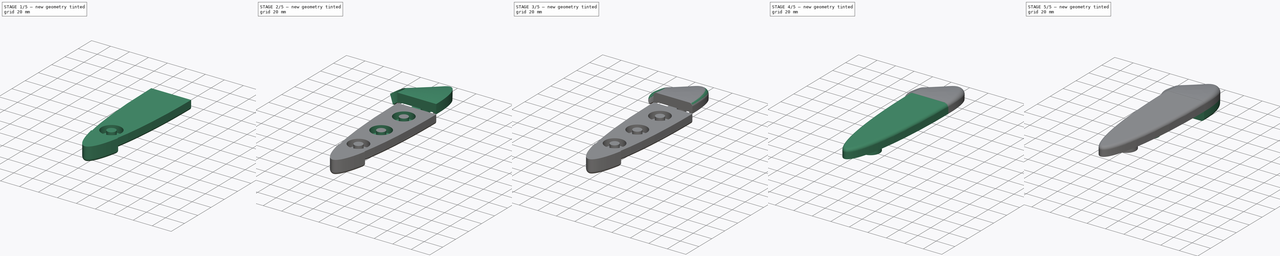
[diagram: build sequence overview — one tinted view per stage of 5, left to right]
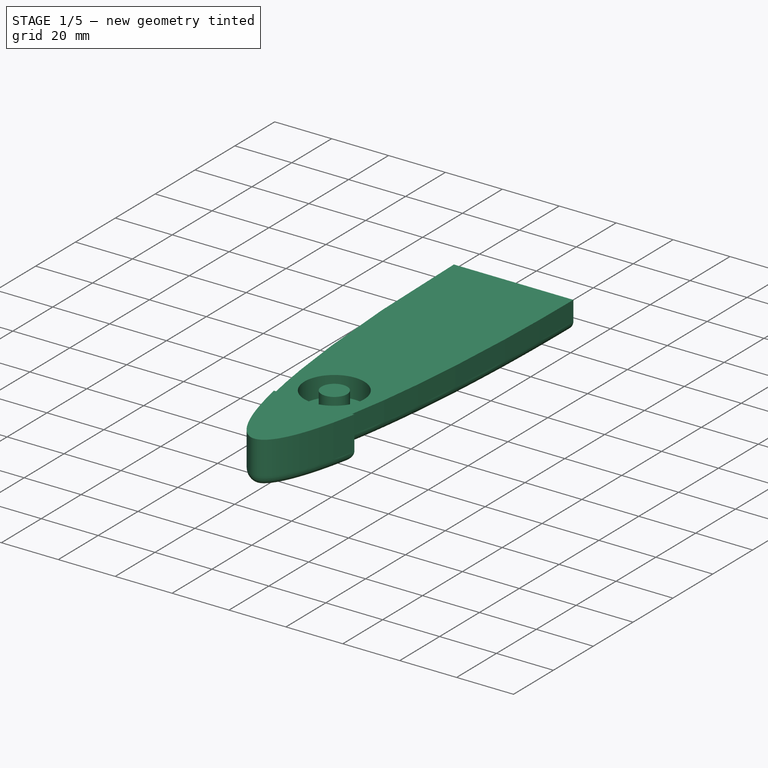
[diagram: stage 1 of 5 — iso view after this stage's code; geometry added in this stage tinted green]
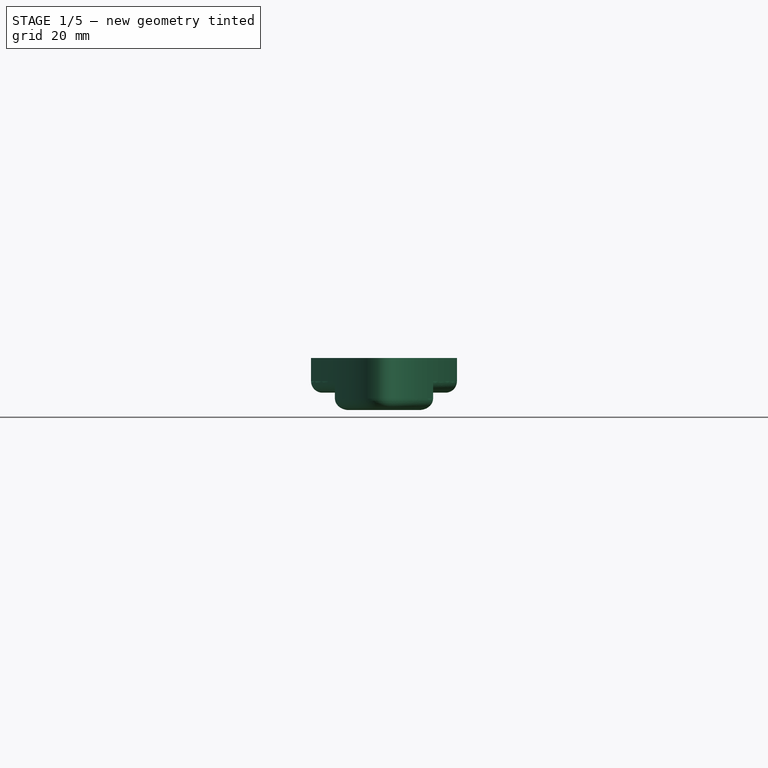
[diagram: stage 1 of 5 — front view after this stage's code; geometry added in this stage tinted green]
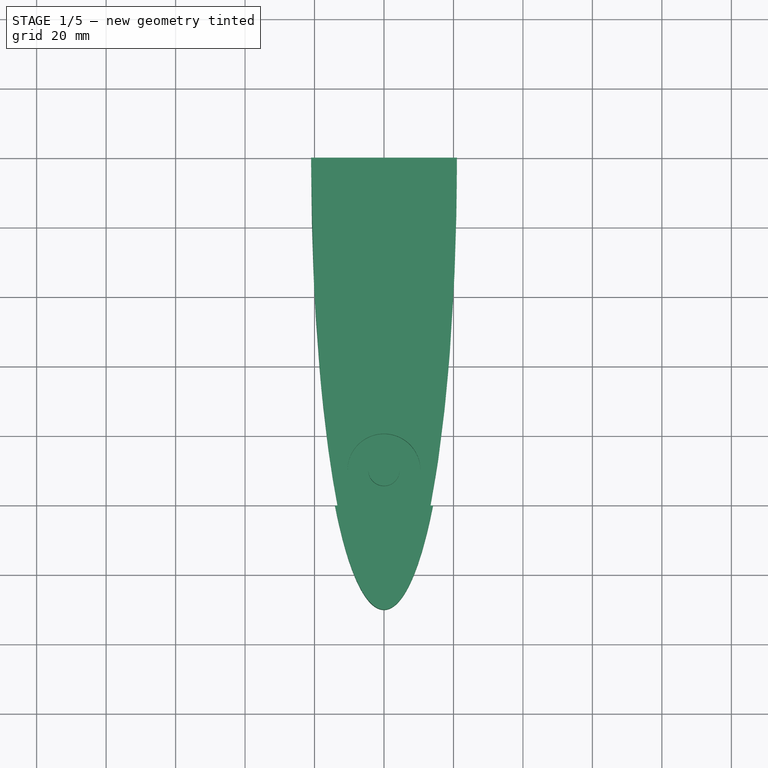
[diagram: stage 1 of 5 — top view after this stage's code; geometry added in this stage tinted green]
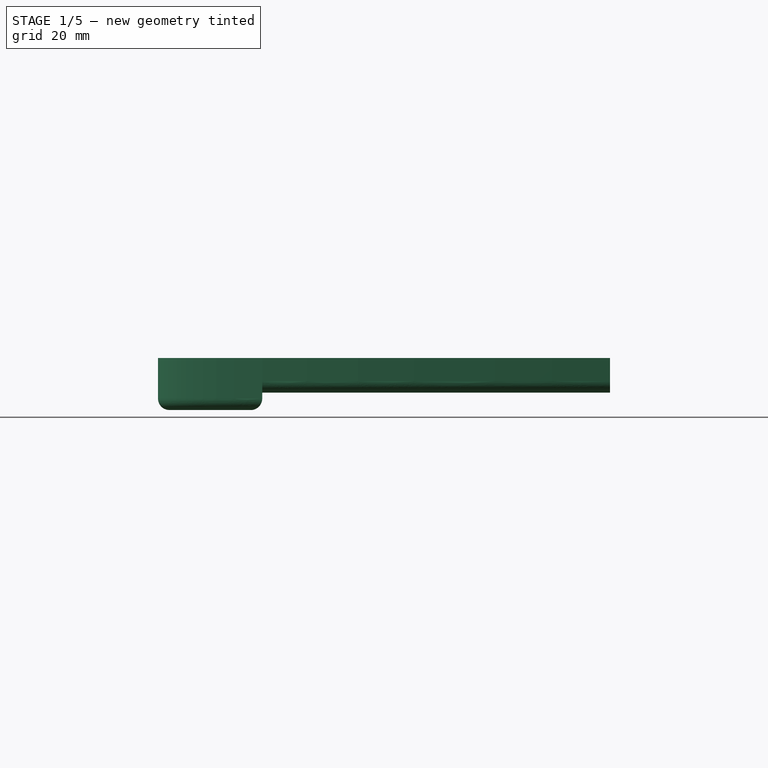
[diagram: stage 1 of 5 — right view after this stage's code; geometry added in this stage tinted green]
FCSTD DOCUMENT  (FreeCAD 0.18R14555 (Git shallow))
Label: Poingee frigo
License: All rights reserved
LicenseURL: http://en.wikipedia.org/wiki/All_rights_reserved
objects: Sketcher::SketchObject×11, PartDesign::Pad×7, Part::Sweep×2, PartDesign::Fillet×2, Part::Fillet×2, PartDesign::Pocket×2, PartDesign::LinearPattern×2, PartDesign::Body×2, Part::Cut×2, Part::Helix×1
note: 42 computed .brp shape members not serialized (recipe doc carries the construction recipe); baked Part::Feature solids carry a one-line shape summary decoded from their .brp

FEATURE [Sketcher::SketchObject] Sketch001  label="botHand_Sketch"
  MapMode = 5
  Support = -> [XY_Plane001]
  sketch-geometry (6):
    g0: ArcOfEllipse CenterX=0 CenterY=0 CenterZ=0 NormalX=0 NormalY=0 NormalZ=1 MajorRadius=130 MinorRadius=21 AngleXU=-1.5708 StartAngle=4.71239 EndAngle=7.85398
    g1: LineSegment [constr] StartX=0 StartY=-130 StartZ=0 EndX=0 EndY=130 EndZ=0
    g2: LineSegment [constr] StartX=21 StartY=0 StartZ=0 EndX=-21 EndY=0 EndZ=0
    g3: GeomPoint X=0 Y=-128.293 Z=0
    g4: GeomPoint X=0 Y=128.293 Z=0
    g5: LineSegment StartX=-21 StartY=0 StartZ=0 EndX=21 EndY=0 EndZ=0
  constraints (8):
    c: InternalAlignment(g1-g4 -> g0) x4
    c: DistanceY(g1,g0) = 130
    c: Coincident(g0,g-1)
    c: DistanceX(g2,g2) = 42
    c: PointOnObject(g0,g-1)
    c: PointOnObject(g0,g-1)
    c: PointOnObject(g1,g-2)
    c: Horizontal(g5)
FEATURE [PartDesign::Pad] Pad001  label="botHand_Pad"
  Length = 10
  Length2 = 100
  Profile = -> Sketch001
  Reversed = true
  Type = 0
FEATURE [Sketcher::SketchObject] Sketch004  label="stopHand_Sketch"
  AttachmentOffset = pos=(0,0,-10) rot=(0,0,1;0rad)
  MapMode = 5
  Placement = pos=(0,0,0) rot=(1,0,0;3.14159rad)
  Support = -> [Pad001]
  sketch-geometry (6):
    g0: ArcOfEllipse CenterX=0 CenterY=27.6697 CenterZ=0 NormalX=0 NormalY=0 NormalZ=1 MajorRadius=102.46 MinorRadius=19.9816 AngleXU=-1.5708 StartAngle=2.35633 EndAngle=3.92685
    g1: LineSegment [constr] StartX=0 StartY=-74.7904 StartZ=0 EndX=0 EndY=130.13 EndZ=0
    g2: LineSegment [constr] StartX=19.9816 StartY=27.6697 StartZ=0 EndX=-19.9816 EndY=27.6697 EndZ=0
    g3: GeomPoint X=0 Y=-72.8231 Z=0
    g4: GeomPoint X=0 Y=128.163 Z=0
    g5: LineSegment StartX=-14.1272 StartY=100.13 StartZ=0 EndX=14.1272 EndY=100.13 EndZ=0
  constraints (7):
    c: InternalAlignment(g1-g4 -> g0) x4
    c: PointOnObject(g0,g-2)
    c: Coincident(g5,g0)
    c: Coincident(g5,g0)
    c: Horizontal(g5)
    c: DistanceY(g0,g1) = 30
    c: PointOnObject(g1,g-2)
FEATURE [PartDesign::Pad] Pad002  label="stopHand_Pad"
  BaseFeature = -> Pad001
  Length = 15
  Length2 = 100
  Profile = -> Sketch004
  Type = 0
FEATURE [PartDesign::Fillet] Fillet
  Base = -> Pad002 [Edge20,Edge13,Edge16,Edge3]
  BaseFeature = -> Pad002
  Radius = 3.3
FEATURE [PartDesign::Body] Body  label="Top_Body"
  Group = -> [Sketch,Pad,Sketch002,Fillet001,Sketch005,Pad003,Sketch006,Pocket,LinearPattern]
  Origin = -> Origin
  Tip = -> LinearPattern
FEATURE [Sketcher::SketchObject] Sketch007
  MapMode = 5
  Support = -> [XY_Plane001]
  sketch-geometry (2):
    g0: Circle CenterX=0 CenterY=-90 CenterZ=0 NormalX=0 NormalY=0 NormalZ=1 AngleXU=0 Radius=10.5
    g1: Circle CenterX=0 CenterY=-90 CenterZ=0 NormalX=0 NormalY=0 NormalZ=1 AngleXU=0 Radius=4.5
  constraints (4):
    c: PointOnObject(g0,g-2)
    c: Radius(g0) = 10.5
    c: DistanceY(g0,g-1) = 90
    c: Radius(g1) = 4.5
FEATURE [PartDesign::Pocket] Pocket001
  BaseFeature = -> Fillet
  Length = 7
  Length2 = 100
  Profile = -> Sketch007
  Type = 0
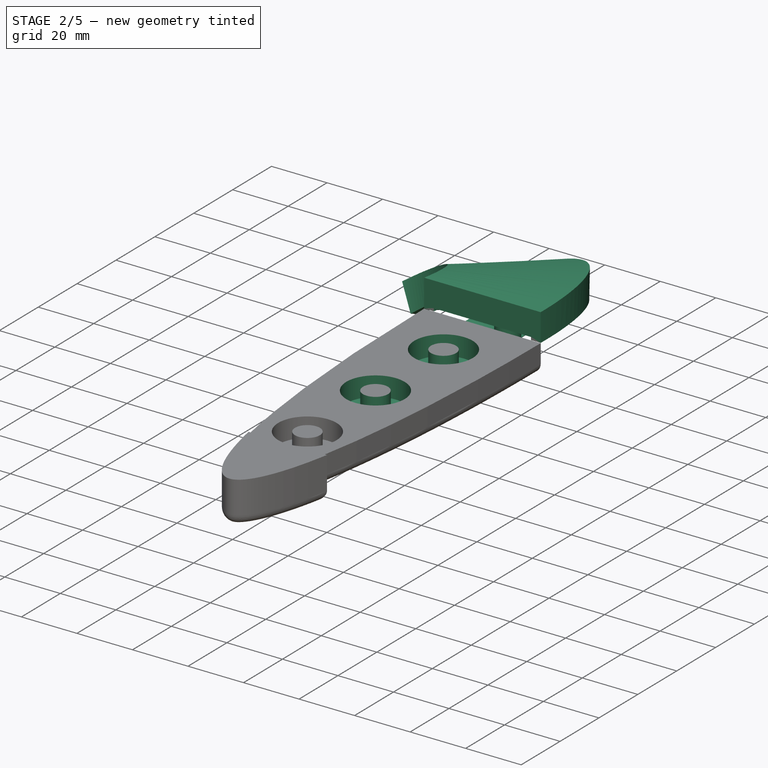
[diagram: stage 2 of 5 — iso view after this stage's code; geometry added in this stage tinted green]
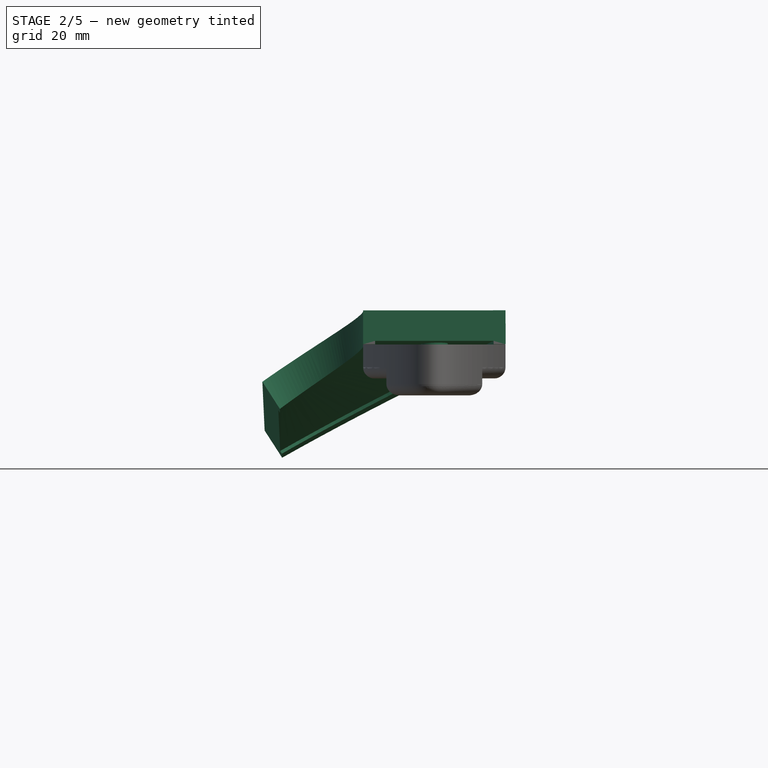
[diagram: stage 2 of 5 — front view after this stage's code; geometry added in this stage tinted green]
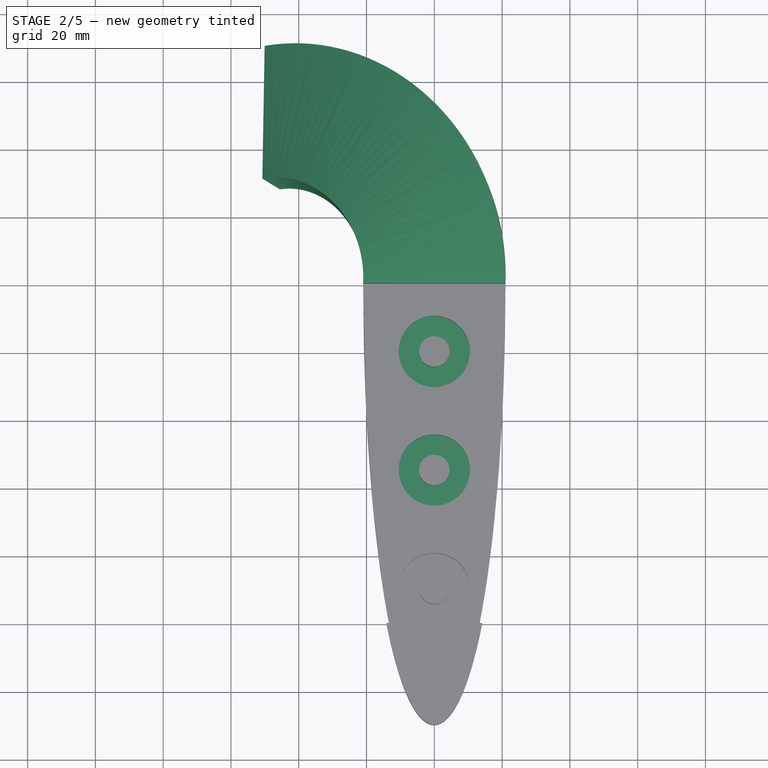
[diagram: stage 2 of 5 — top view after this stage's code; geometry added in this stage tinted green]
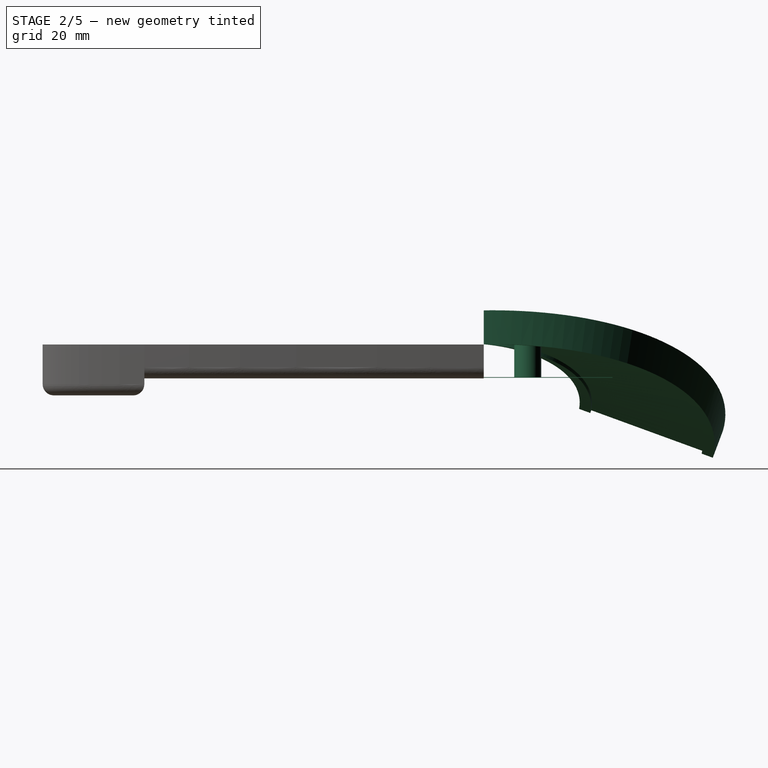
[diagram: stage 2 of 5 — right view after this stage's code; geometry added in this stage tinted green]
FEATURE [Sketcher::SketchObject] Sketch002  label="topSocket_Sketch"
  MapMode = 5
  Placement = pos=(0,0,0) rot=(1,0,0;1.5708rad)
  Support = -> [XZ_Plane]
  sketch-geometry (8):
    g0: LineSegment StartX=-21 StartY=10.0851 StartZ=0 EndX=21 EndY=10.0851 EndZ=0
    g1: LineSegment StartX=21 StartY=10.0851 StartZ=0 EndX=21 EndY=0.085103 EndZ=0
    g2: LineSegment StartX=-21 StartY=0.085103 StartZ=0 EndX=-21 EndY=10.0851 EndZ=0
    g3: LineSegment StartX=-21 StartY=0.085103 StartZ=0 EndX=-17.5 EndY=0.085103 EndZ=0
    g4: LineSegment StartX=21 StartY=0.085103 StartZ=0 EndX=17.5 EndY=0.085103 EndZ=0
    g5: LineSegment StartX=-17.5 StartY=0.085103 StartZ=0 EndX=-17.5 EndY=1.0851 EndZ=0
    g6: LineSegment StartX=17.5 StartY=0.085103 StartZ=0 EndX=17.5 EndY=1.0851 EndZ=0
    g7: LineSegment StartX=17.5 StartY=1.0851 StartZ=0 EndX=-17.5 EndY=1.0851 EndZ=0
  constraints (21):
    c: Coincident(g0,g1)
    c: Coincident(g2,g0)
    c: Horizontal(g0)
    c: Vertical(g1)
    c: Vertical(g2)
    c: Symmetric(g2,g1,g-2)
    c: DistanceX(g0,g0) = 42
    c: DistanceY(g2,g0) = 10
    c: Coincident(g3,g2)
    c: Coincident(g4,g1)
    c: Horizontal(g4)
    c: Coincident(g5,g3)
    c: Vertical(g5)
    c: Vertical(g6)
    c: Coincident(g7,g6)
    c: Coincident(g7,g5)
    c: DistanceY(g4,g6) = 1
    c: DistanceX(g5,g6) = 35
    c: Symmetric(g6,g5,g-2)
    c: Horizontal(g3)
    c: Coincident(g4,g6)
FEATURE [Part::Helix] Helix  label="Hélice"
  Angle = 0
  AttacherType = Attacher::AttachEngine3D
  Height = 10
  LocalCoord = 1
  Pitch = 36
  Placement = pos=(-50,0,0) rot=(-0.185924,-0.130693,0.973834;2.36771rad)
  Radius = 51
  Style = 1
FEATURE [Part::Sweep] Sweep  label="top_Sweep"
  Frenet = true
  Sections = -> [Sketch002]
  Solid = true
  Spine = -> Helix [Edge1]
  Transition = 2
FEATURE [PartDesign::LinearPattern] LinearPattern001
  BaseFeature = -> Pocket001
  Direction = -> Y_Axis001
  Length = 70
  Occurrences = 3
  Originals = -> [Pocket001]
FEATURE [Sketcher::SketchObject] Sketch008
  MapMode = 5
  Placement = pos=(0,0,0) rot=(0,0.707107,0.707107;3.14159rad)
  Support = -> [LinearPattern001]
  sketch-geometry (4):
    g0: LineSegment StartX=-2.13004 StartY=-9.60164 StartZ=0 EndX=17.87 EndY=-9.60164 EndZ=0
    g1: LineSegment StartX=17.87 StartY=-9.60164 StartZ=0 EndX=17.87 EndY=-9.80578 EndZ=0
    g2: LineSegment StartX=17.87 StartY=-9.80578 StartZ=0 EndX=-2.13004 EndY=-9.80578 EndZ=0
    g3: LineSegment StartX=-2.13004 StartY=-9.80578 StartZ=0 EndX=-2.13004 EndY=-9.60164 EndZ=0
  constraints (9):
    c: Coincident(g0,g1)
    c: Coincident(g1,g2)
    c: Coincident(g2,g3)
    c: Coincident(g3,g0)
    c: Horizontal(g0)
    c: Horizontal(g2)
    c: Vertical(g1)
    c: Vertical(g3)
    c: DistanceX(g2,g1) = 20
FEATURE [PartDesign::Pad] Pad004
  BaseFeature = -> LinearPattern001
  Length = 38
  Length2 = 100
  Profile = -> Sketch008
  Type = 0
FEATURE [Sketcher::SketchObject] Sketch009  label="botSocketPin1_Sketch"
  MapMode = 5
  Placement = pos=(0,-2.1e-15,-9.60164) rot=(0,0,1;0rad)
  Support = -> [Pad004]
  sketch-geometry (1):
    g0: Circle CenterX=0 CenterY=13 CenterZ=0 NormalX=0 NormalY=0 NormalZ=1 AngleXU=0 Radius=4
  constraints (3):
    c: Radius(g0) = 4
    c: DistanceY(g-1,g0) = 13
    c: DistanceX(g0,g-1) = 0
FEATURE [PartDesign::Pad] Pad005  label="botSocketPin1_Pad"
  BaseFeature = -> Pad004
  Length = 14
  Length2 = 100
  Profile = -> Sketch009
  Type = 0
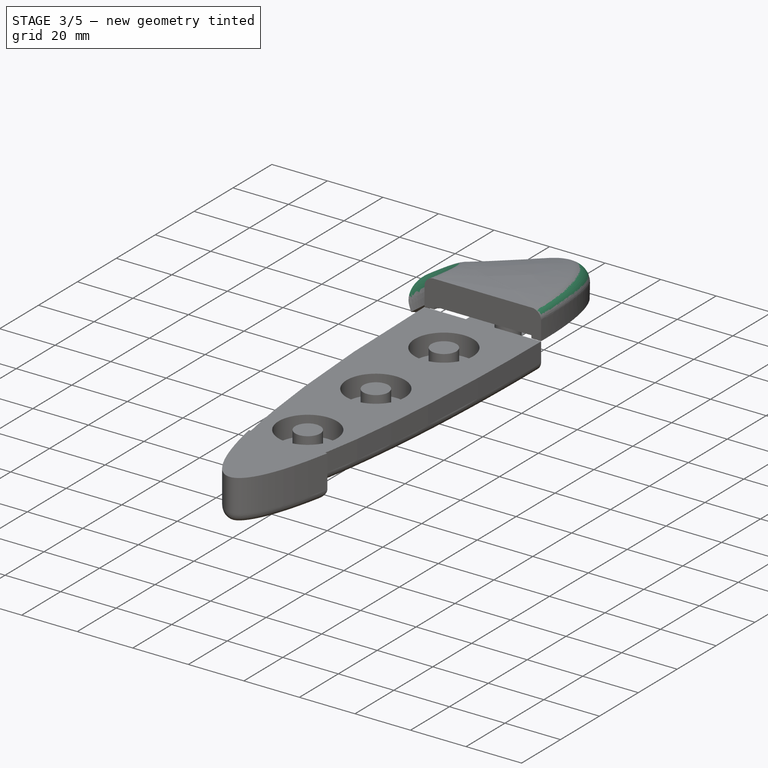
[diagram: stage 3 of 5 — iso view after this stage's code; geometry added in this stage tinted green]
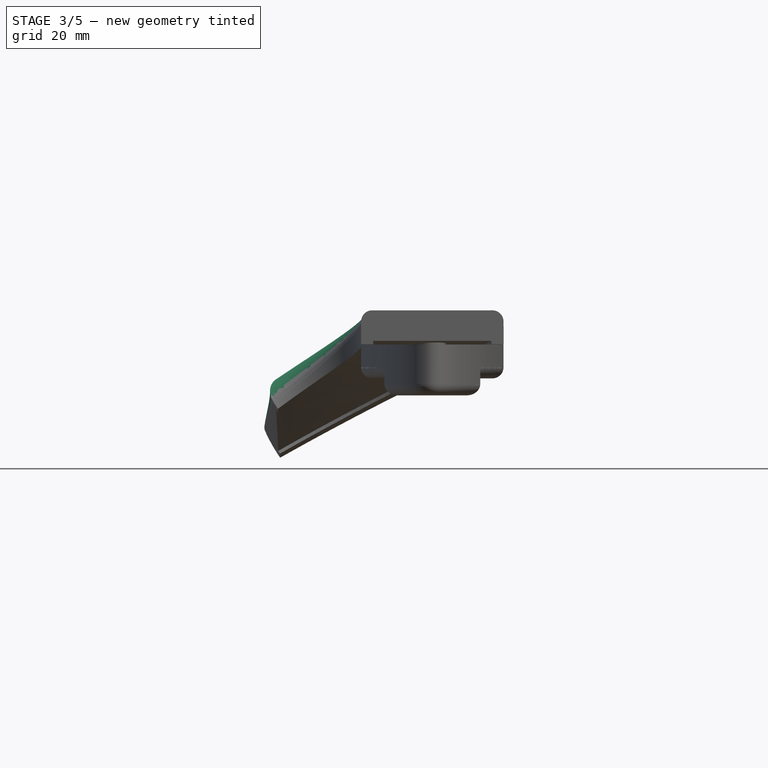
[diagram: stage 3 of 5 — front view after this stage's code; geometry added in this stage tinted green]
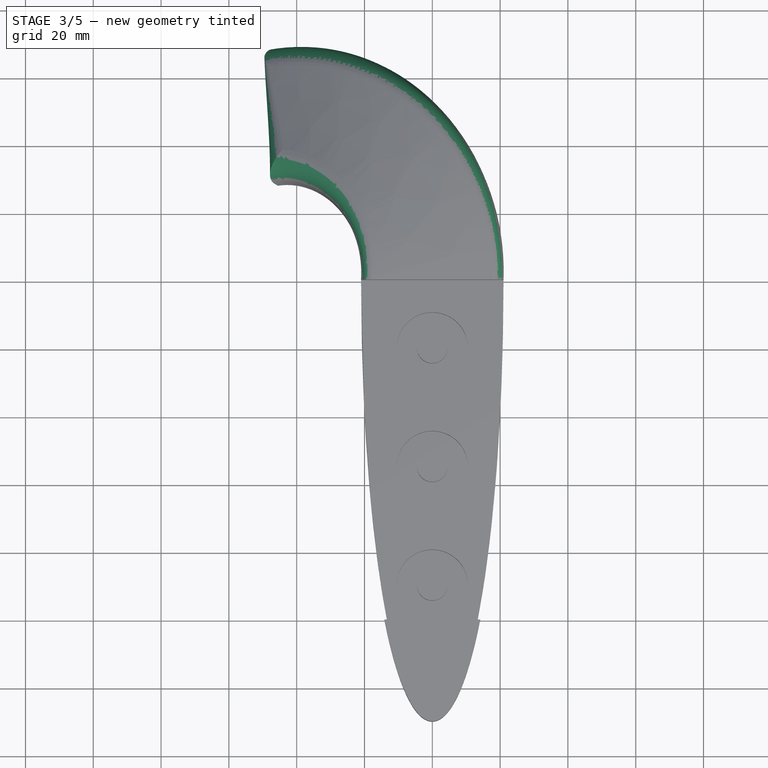
[diagram: stage 3 of 5 — top view after this stage's code; geometry added in this stage tinted green]
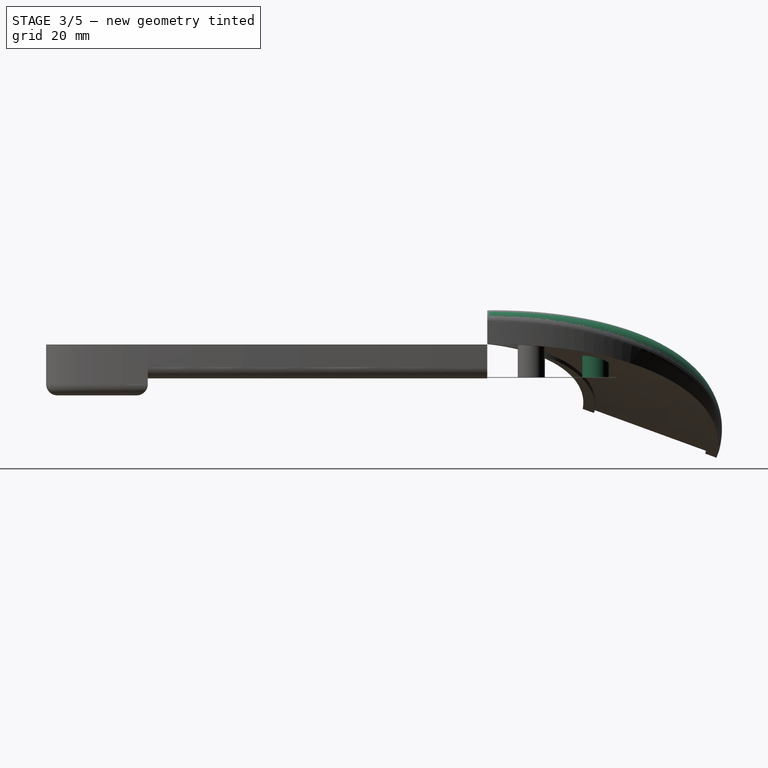
[diagram: stage 3 of 5 — right view after this stage's code; geometry added in this stage tinted green]
FEATURE [Part::Fillet] Fillet002  label="top_Fillet"
  Base = -> Sweep
  Edges = 3 edges: [Edge1 r1=8 r2=3.3,Edge2 r1=8 r2=1,Edge3 r1=8 r2=3.3]
FEATURE [Sketcher::SketchObject] Sketch010  label="botSocketPin2_Sketch"
  MapMode = 5
  Placement = pos=(0,-2.1e-15,-9.60164) rot=(0,0,1;0rad)
  Support = -> [Pad005]
  sketch-geometry (1):
    g0: Circle CenterX=-8 CenterY=32 CenterZ=0 NormalX=0 NormalY=0 NormalZ=1 AngleXU=0 Radius=4
  constraints (3):
    c: Radius(g0) = 4
    c: DistanceX(g0,g-1) = 8
    c: DistanceY(g-1,g0) = 32
FEATURE [PartDesign::Pad] Pad006  label="botSocketPin2_Pad"
  BaseFeature = -> Pad005
  Length = 11
  Length2 = 100
  Profile = -> Sketch010
  Type = 0
FEATURE [PartDesign::Body] Body001  label="Bottom_Body"
  Group = -> [Sketch001,Pad001,Sketch003,Sketch004,Pad002,Fillet,Sketch007,Pocket001,LinearPattern001,Sketch008,Pad004,Sketch009,Pad005,Sketch010,Pad006]
  Origin = -> Origin001
  Tip = -> Pad006
FEATURE [Part::Cut] Cut
  Base = -> Fillet002
  Tool = -> Pad005
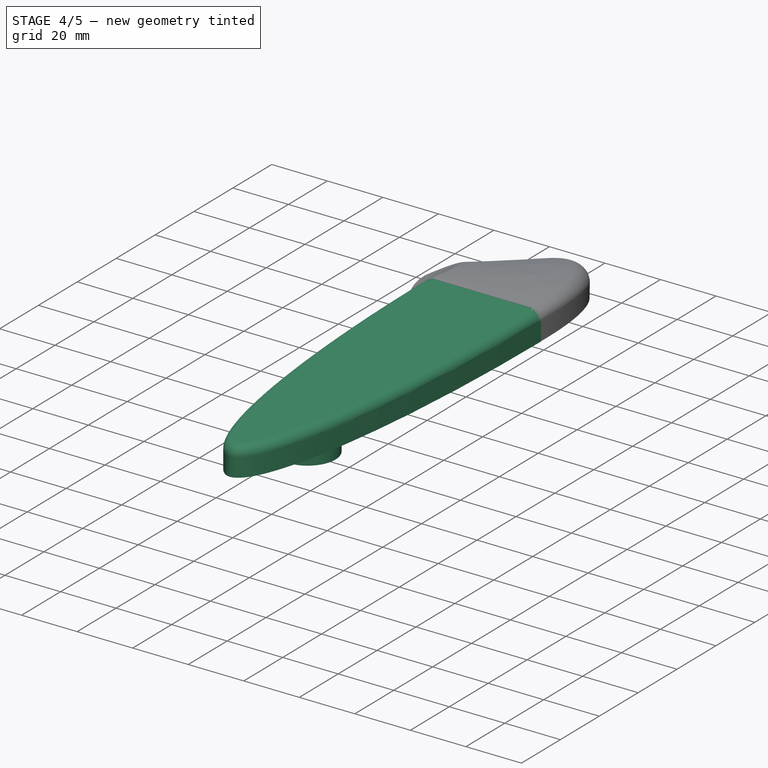
[diagram: stage 4 of 5 — iso view after this stage's code; geometry added in this stage tinted green]
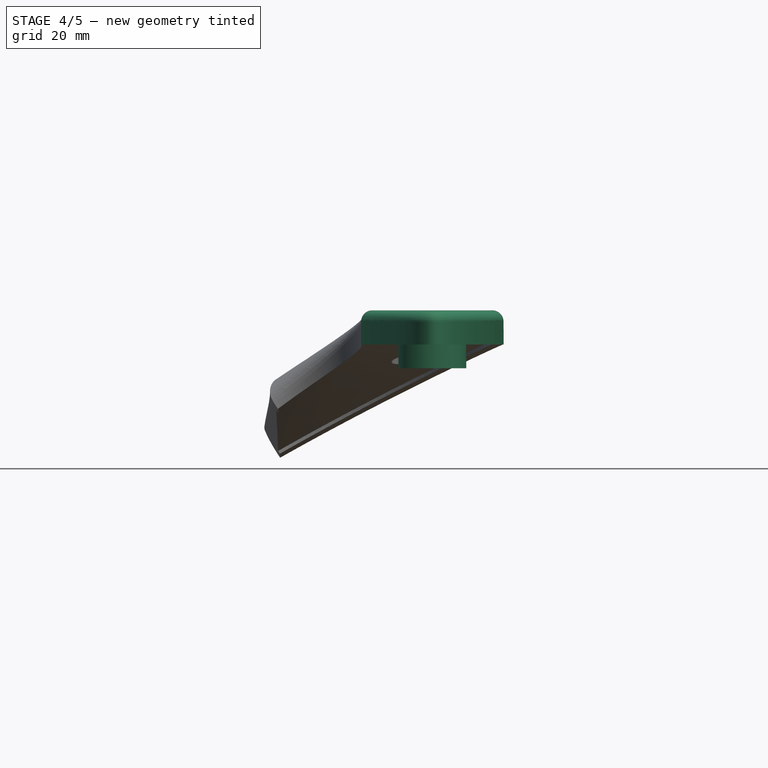
[diagram: stage 4 of 5 — front view after this stage's code; geometry added in this stage tinted green]
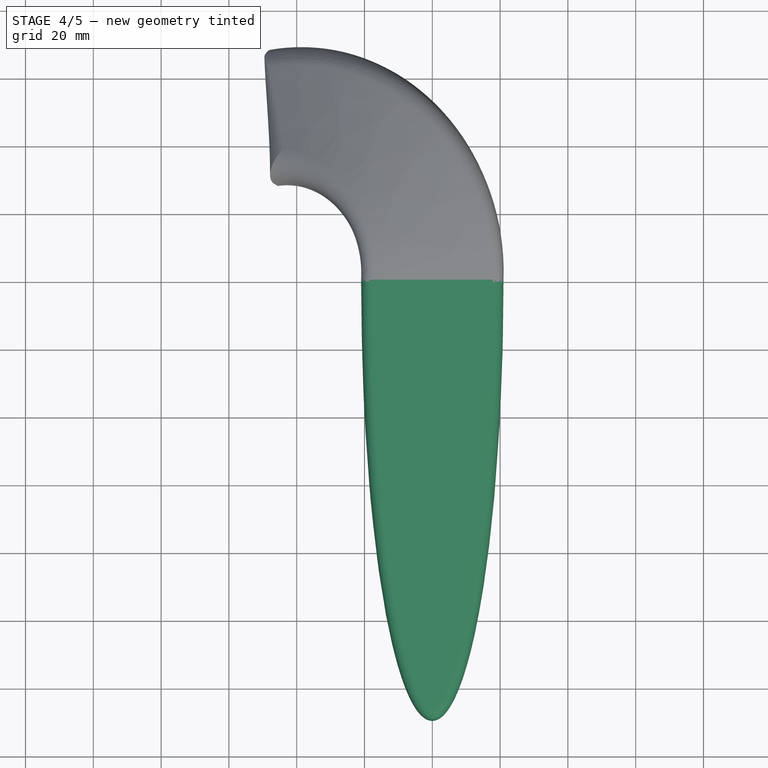
[diagram: stage 4 of 5 — top view after this stage's code; geometry added in this stage tinted green]
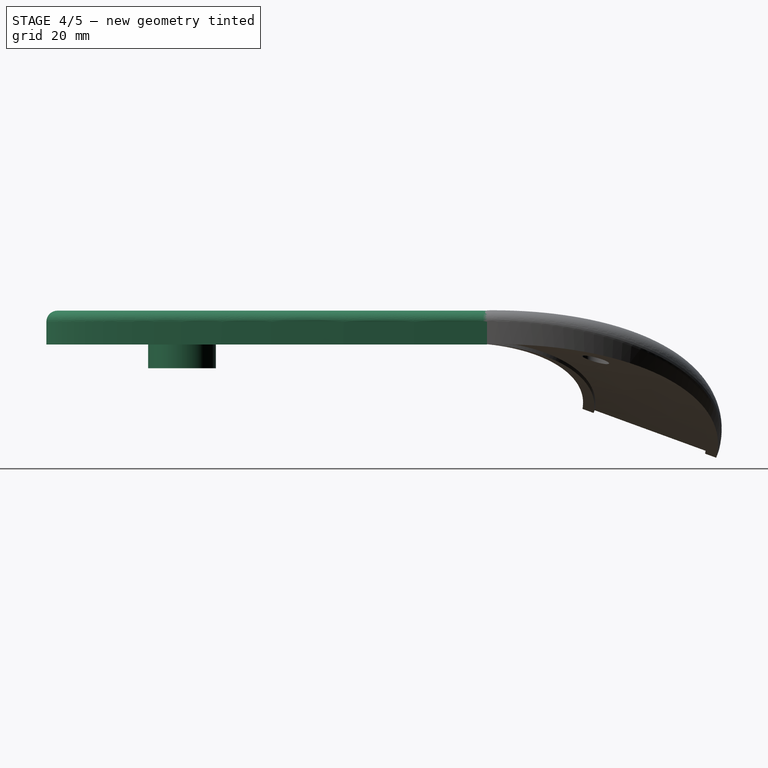
[diagram: stage 4 of 5 — right view after this stage's code; geometry added in this stage tinted green]
FEATURE [Sketcher::SketchObject] Sketch  label="topHand_Sketch"
  MapMode = 5
  Support = -> [XY_Plane]
  sketch-geometry (6):
    g0: ArcOfEllipse CenterX=0 CenterY=0 CenterZ=0 NormalX=0 NormalY=0 NormalZ=1 MajorRadius=130 MinorRadius=21 AngleXU=-1.5708 StartAngle=4.71239 EndAngle=7.85398
    g1: LineSegment [constr] StartX=0 StartY=-130 StartZ=0 EndX=0 EndY=130 EndZ=0
    g2: LineSegment [constr] StartX=21 StartY=0 StartZ=0 EndX=-21 EndY=0 EndZ=0
    g3: GeomPoint X=0 Y=-128.293 Z=0
    g4: GeomPoint X=0 Y=128.293 Z=0
    g5: LineSegment StartX=-21 StartY=0 StartZ=0 EndX=21 EndY=0 EndZ=0
  constraints (8):
    c: InternalAlignment(g1-g4 -> g0) x4
    c: DistanceY(g1,g0) = 130
    c: Coincident(g0,g-1)
    c: DistanceX(g2,g2) = 42
    c: PointOnObject(g0,g-1)
    c: PointOnObject(g0,g-1)
    c: PointOnObject(g1,g-2)
    c: Horizontal(g5)
FEATURE [PartDesign::Pad] Pad  label="topHand_Pad"
  Length = 10
  Length2 = 100
  Profile = -> Sketch
  Type = 0
FEATURE [PartDesign::Fillet] Fillet001  label="topHandle_Fillet"
  Base = -> Pad [Edge4]
  BaseFeature = -> Pad
  Radius = 3.3
FEATURE [Sketcher::SketchObject] Sketch005  label="malHandlePin_Sketch"
  MapMode = 5
  Support = -> [XY_Plane]
  sketch-geometry (1):
    g0: Circle CenterX=0 CenterY=-90 CenterZ=0 NormalX=0 NormalY=0 NormalZ=1 AngleXU=0 Radius=10
  constraints (3):
    c: PointOnObject(g0,g-2)
    c: Radius(g0) = 10
    c: DistanceY(g0,g-1) = 90
FEATURE [PartDesign::Pad] Pad003  label="malHandlePin_Pad"
  BaseFeature = -> Fillet001
  Length = 7
  Length2 = 100
  Profile = -> Sketch005
  Reversed = true
  Type = 0
FEATURE [Part::Cut] Cut001
  Base = -> Cut
  Tool = -> Pad006
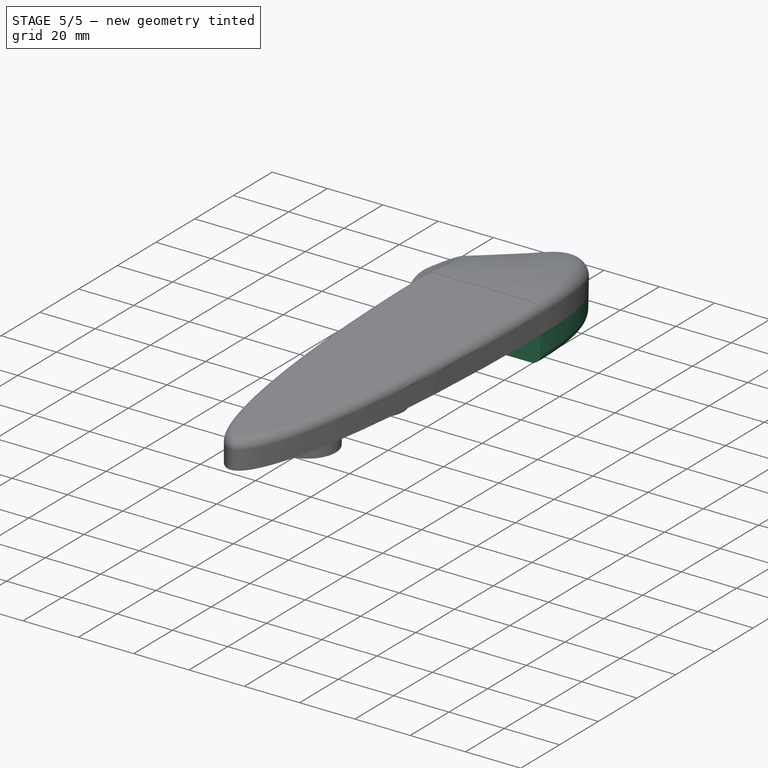
[diagram: stage 5 of 5 — iso view after this stage's code; geometry added in this stage tinted green]
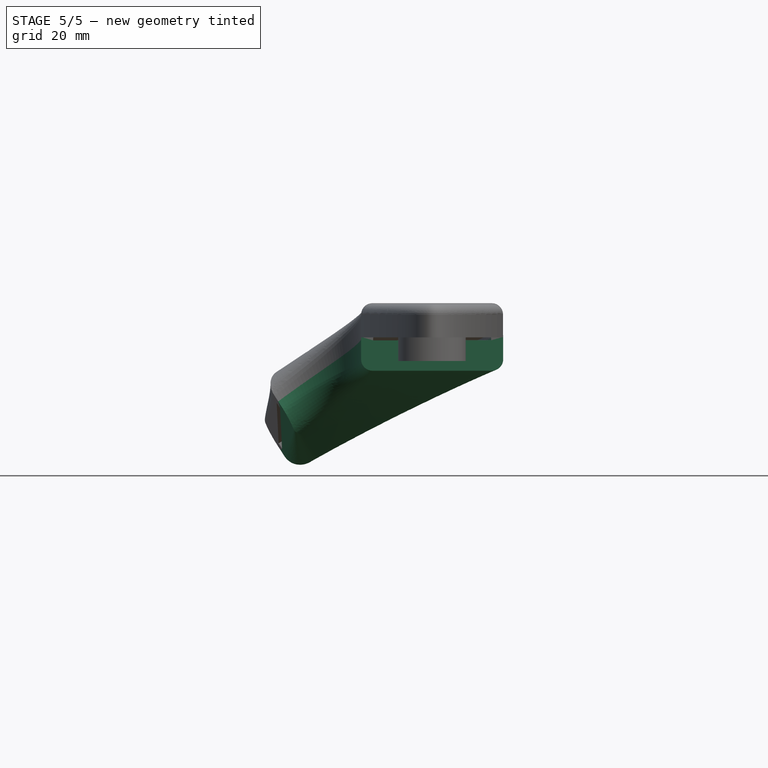
[diagram: stage 5 of 5 — front view after this stage's code; geometry added in this stage tinted green]
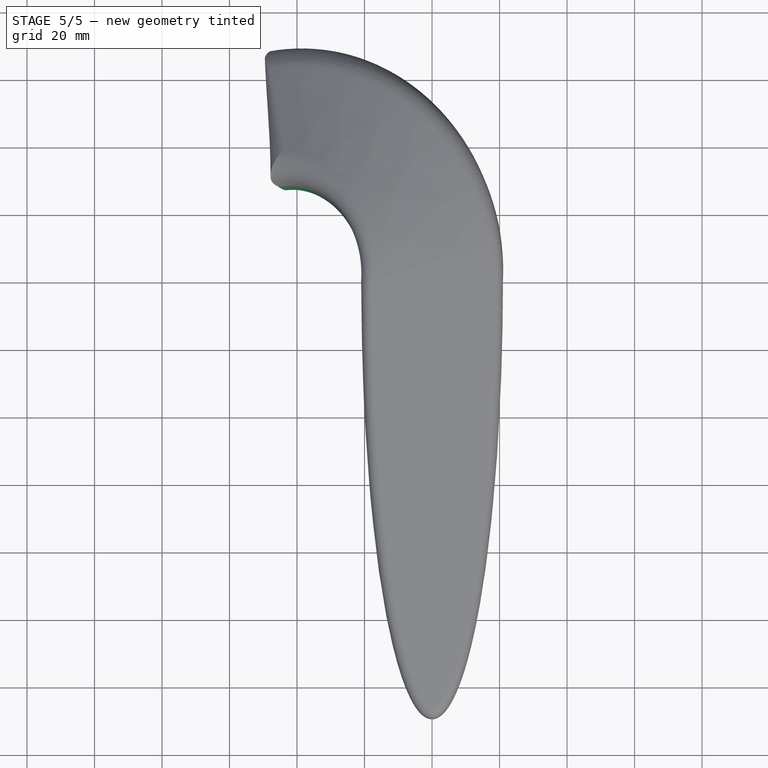
[diagram: stage 5 of 5 — top view after this stage's code; geometry added in this stage tinted green]
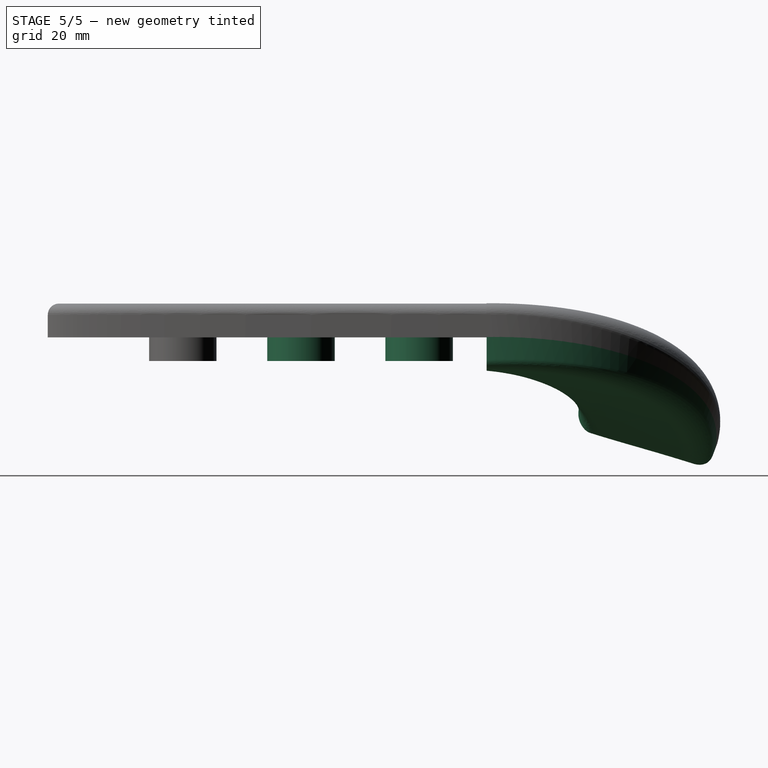
[diagram: stage 5 of 5 — right view after this stage's code; geometry added in this stage tinted green]
FEATURE [Sketcher::SketchObject] Sketch003  label="botSocket_Sketch"
  MapMode = 5
  Placement = pos=(0,0,0) rot=(1,0,0;1.5708rad)
  Support = -> [XZ_Plane001]
  sketch-geometry (8):
    g0: LineSegment StartX=21 StartY=0.117452 StartZ=0 EndX=21 EndY=-9.88255 EndZ=0
    g1: LineSegment StartX=21 StartY=-9.88255 StartZ=0 EndX=-21 EndY=-9.88255 EndZ=0
    g2: LineSegment StartX=-21 StartY=-9.88255 StartZ=0 EndX=-21 EndY=0.117452 EndZ=0
    g3: LineSegment StartX=-21 StartY=0.117452 StartZ=0 EndX=-17.5 EndY=0.117452 EndZ=0
    g4: LineSegment StartX=-17.5 StartY=0.117452 StartZ=0 EndX=-17.5 EndY=-0.882548 EndZ=0
    g5: LineSegment StartX=-17.5 StartY=-0.882548 StartZ=0 EndX=17.5 EndY=-0.882548 EndZ=0
    g6: LineSegment StartX=17.5 StartY=-0.882548 StartZ=0 EndX=17.5 EndY=0.117452 EndZ=0
    g7: LineSegment StartX=21 StartY=0.117452 StartZ=0 EndX=17.5 EndY=0.117452 EndZ=0
  constraints (21):
    c: Coincident(g0,g1)
    c: Coincident(g1,g2)
    c: Vertical(g0)
    c: Vertical(g2)
    c: Symmetric(g1,g0,g-2)
    c: DistanceX(g2,g0) = 42
    c: DistanceY(g1,g2) = 10
    c: Coincident(g3,g2)
    c: Horizontal(g3)
    c: Coincident(g4,g3)
    c: Vertical(g4)
    c: Coincident(g5,g4)
    c: Horizontal(g5)
    c: Coincident(g6,g5)
    c: Vertical(g6)
    c: Coincident(g7,g0)
    c: Coincident(g7,g6)
    c: Horizontal(g7)
    c: DistanceY(g5,g6) = 1
    c: DistanceX(g4,g5) = 35
    c: Symmetric(g6,g3,g-2)
FEATURE [Part::Sweep] Sweep001  label="bot_Sweep"
  Frenet = true
  Sections = -> [Sketch003]
  Solid = true
  Spine = -> Helix
  Transition = 2
FEATURE [Part::Fillet] Fillet003  label="bot_Fillet"
  Base = -> Sweep001
  Edges = 3 edges: [Edge3 r1=8 r2=3.3,Edge5 r1=8 r2=1,Edge6 r1=8 r2=3.3]
FEATURE [Sketcher::SketchObject] Sketch006  label="malHandlepinHole_Sketch"
  MapMode = 5
  Placement = pos=(0,0,-7) rot=(1,0,0;3.14159rad)
  Support = -> [Pad003]
  sketch-geometry (1):
    g0: Circle CenterX=0 CenterY=90 CenterZ=0 NormalX=0 NormalY=0 NormalZ=1 AngleXU=0 Radius=5
  constraints (3):
    c: PointOnObject(g0,g-2)
    c: Radius(g0) = 5
    c: DistanceY(g-1,g0) = 90
FEATURE [PartDesign::Pocket] Pocket  label="malHandlepinHole_Pocket"
  BaseFeature = -> Pad003
  Length = 8
  Length2 = 100
  Profile = -> Sketch006
  Type = 0
FEATURE [PartDesign::LinearPattern] LinearPattern  label="malHandlePin_LinearPattern"
  BaseFeature = -> Pocket
  Direction = -> Y_Axis
  Length = 70
  Occurrences = 3
  Originals = -> [Pad003,Pocket]
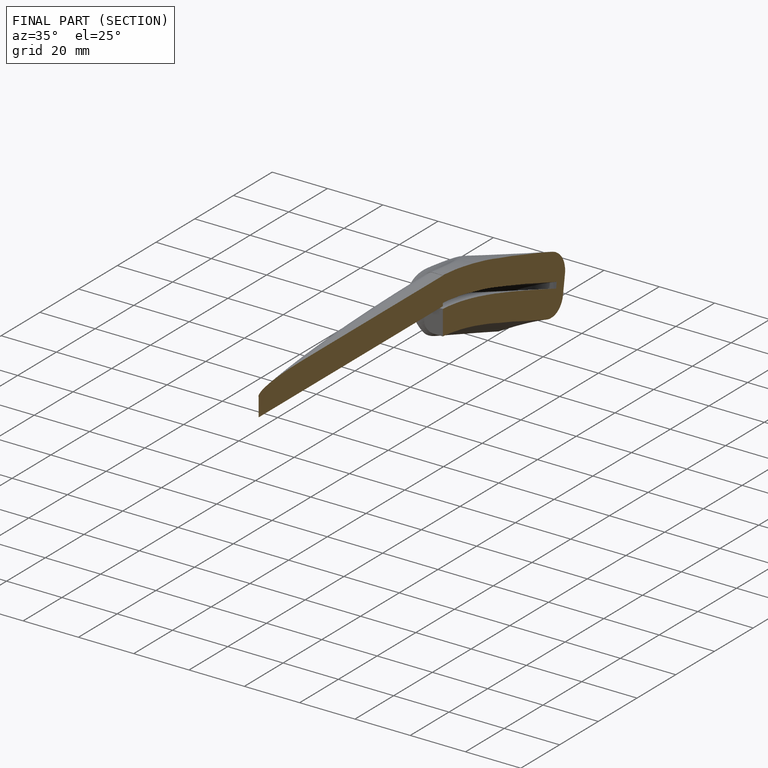
[diagram: finished part — half-section view (interior)]
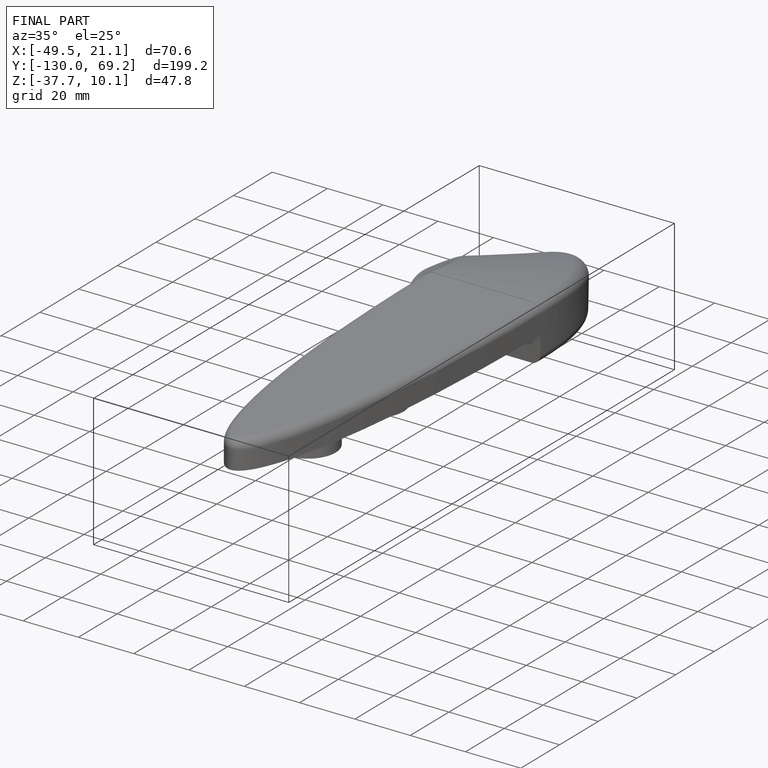
[diagram: finished part — iso view with bounding-box wireframe]
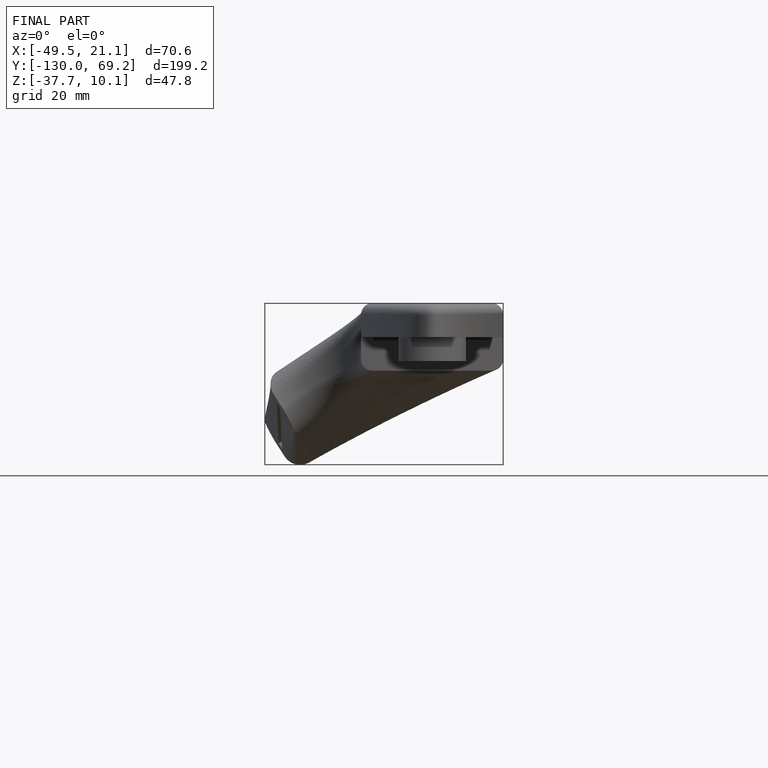
[diagram: finished part — front view with bounding-box wireframe]
